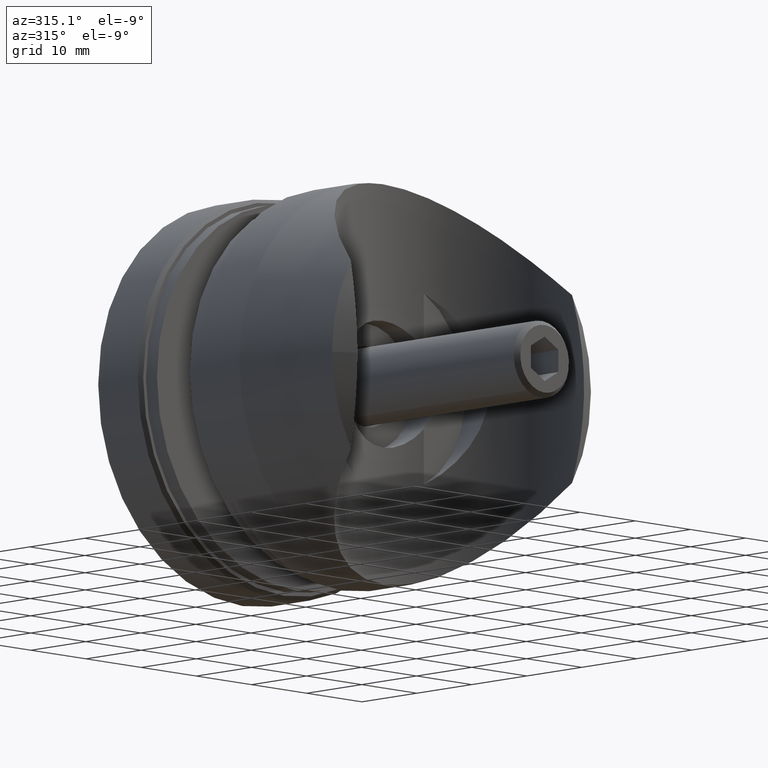
[diagram: clean part render]
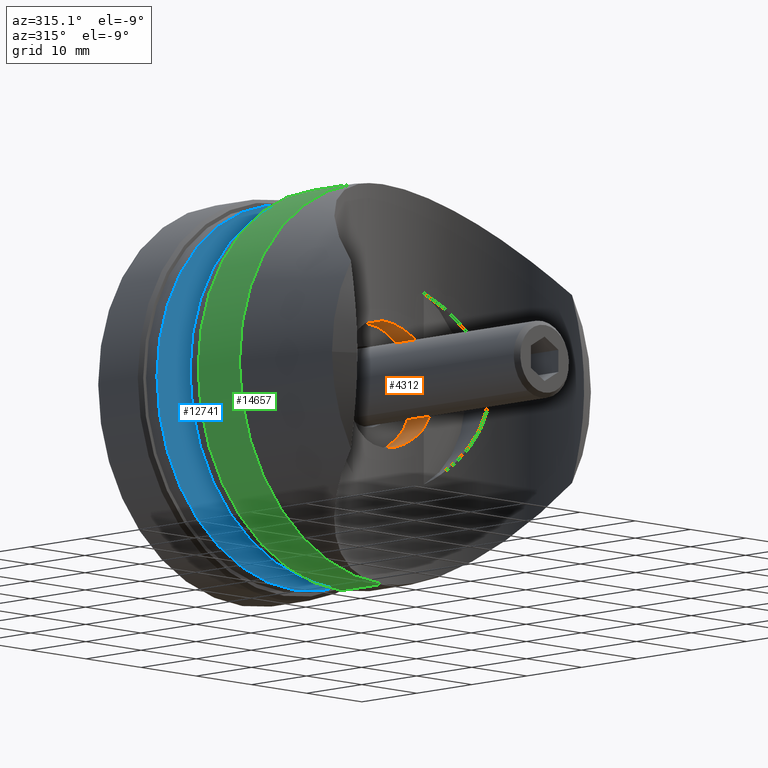
[diagram: same view with three faces highlighted in distinct colors, each labeled with its STEP entity id]
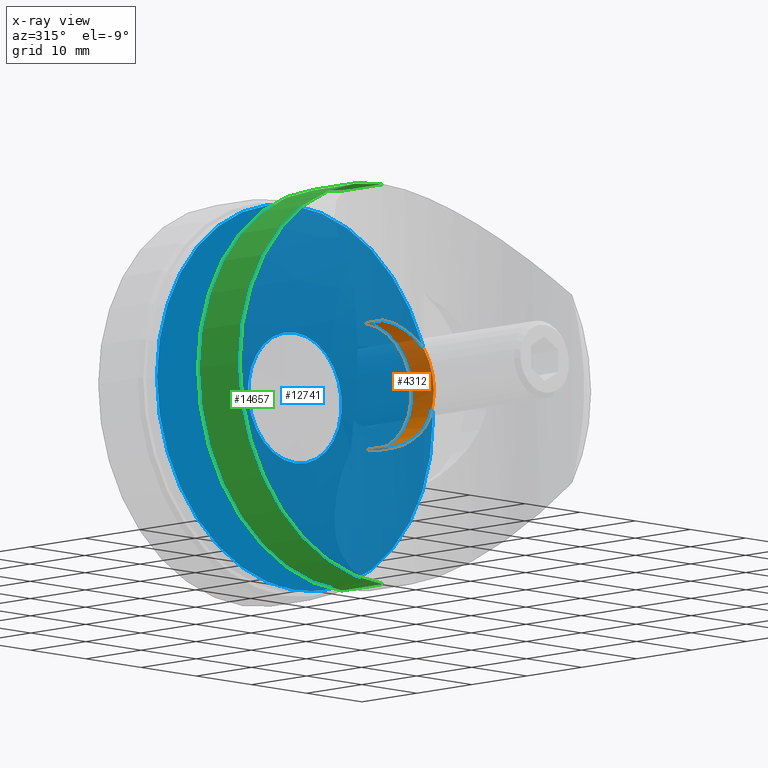
[diagram: x-ray of the same camera — body ghosted, the three highlighted faces saturated]
A machine part, auxiliary view with three faces highlighted in distinct colors.
The next image is the same camera in x-ray (body ghosted, the three faces saturated) — at least one of them is partly hidden behind the body in this view.
Their STEP definitions:

[orange] entity #4312 — the highlighted cylindrical surface (partial cylindrical patch) has radius 8.25 mm, axis along (-0, -1, -0).
#426 = CARTESIAN_POINT ( 'NONE',  ( 6.434283176858145659, -4.999999999999997335, -5.163574343417575818 ) ) ;
#431 = CARTESIAN_POINT ( 'NONE',  ( 3.862137608869713912, -4.352876510457712733, 7.296615947533547697 ) ) ;
#533 = CARTESIAN_POINT ( 'NONE',  ( 1.235946909118811110, -4.033801596995484573, 8.162811506258735861 ) ) ;
#590 = CARTESIAN_POINT ( 'NONE',  ( 3.032843461462812584, -4.210561719508802092, 7.696830862169781184 ) ) ;
#823 = CARTESIAN_POINT ( 'NONE',  ( 0.000000000000000000, 27.33452377915606490, 0.000000000000000000 ) ) ;
#1068 = CARTESIAN_POINT ( 'NONE',  ( 0.000000000000000000, -1.000000000000000888, -8.250000000000000000 ) ) ;
#1110 = DIRECTION ( 'NONE',  ( -0.000000000000000000, -1.000000000000000000, -0.000000000000000000 ) ) ;
#1178 = B_SPLINE_CURVE_WITH_KNOTS ( 'NONE', 3,
 ( #8316, #13671, #14888, #12357, #9730, #14996, #11083, #7092, #431, #590, #8516, #7144, #533, #4435, #16319, #8466 ),
 .UNSPECIFIED., .F., .F.,
 ( 4, 2, 2, 2, 2, 2, 2, 4 ),
 ( 0.01862727477083785804, 0.01955552794347118623, 0.02048378111610451441, 0.02141203428873784606, 0.02234028746137117424, 0.02419679380663783061, 0.02512504697927115879, 0.02605330015190448698 ),
 .UNSPECIFIED. ) ;
#1702 = CARTESIAN_POINT ( 'NONE',  ( 3.867604555593285642, -4.353899705762120931, -7.293691138049652523 ) ) ;
#2099 = ORIENTED_EDGE ( 'NONE', *, *, #4969, .T. ) ;
#2435 = FACE_OUTER_BOUND ( 'NONE', #9738, .T. ) ;
#3379 = AXIS2_PLACEMENT_3D ( 'NONE', #3911, #1110, #7621 ) ;
#3468 = DIRECTION ( 'NONE',  ( 0.000000000000000000, 0.000000000000000000, 1.000000000000000000 ) ) ;
#3656 = LINE ( 'NONE', #8194, #11479 ) ;
#3850 = CIRCLE ( 'NONE', #3379, 8.250000000000000000 ) ;
#3911 = CARTESIAN_POINT ( 'NONE',  ( 0.000000000000000000, -4.999999999999997335, 0.000000000000000000 ) ) ;
#4116 = DIRECTION ( 'NONE',  ( -0.000000000000000000, -1.000000000000000000, -0.000000000000000000 ) ) ;
#4157 = CARTESIAN_POINT ( 'NONE',  ( 0.6280935444801919454, -4.000000000000006217, -8.250000000000001776 ) ) ;
#4175 = ORIENTED_EDGE ( 'NONE', *, *, #11710, .T. ) ;
#4312 = ADVANCED_FACE ( 'NONE', ( #2435 ), #7853, .F. ) ;
#4435 = CARTESIAN_POINT ( 'NONE',  ( 0.6184134506011778054, -4.006767957632635380, 8.232655783705878250 ) ) ;
#4791 = VERTEX_POINT ( 'NONE', #14221 ) ;
#4969 = EDGE_CURVE ( 'NONE', #10486, #5232, #3656, .T. ) ;
#4970 = ORIENTED_EDGE ( 'NONE', *, *, #14751, .T. ) ;
#5232 = VERTEX_POINT ( 'NONE', #9906 ) ;
#5299 = ORIENTED_EDGE ( 'NONE', *, *, #6974, .F. ) ;
#5466 = DIRECTION ( 'NONE',  ( 0.000000000000000000, 0.000000000000000000, -1.000000000000000000 ) ) ;
#5576 = CARTESIAN_POINT ( 'NONE',  ( 0.000000000000000000, -4.000000000000003553, -8.250000000000000000 ) ) ;
#5681 = CARTESIAN_POINT ( 'NONE',  ( 3.316185083126090394, -4.259102718118249697, -7.560371148968942023 ) ) ;
#5814 = DIRECTION ( 'NONE',  ( -0.000000000000000000, -1.000000000000000000, -0.000000000000000000 ) ) ;
#5825 = CARTESIAN_POINT ( 'NONE',  ( 4.652563320265802105, -4.515134109226534243, -6.819802206133839917 ) ) ;
#5828 = AXIS2_PLACEMENT_3D ( 'NONE', #16574, #15373, #3468 ) ;
#6718 = CARTESIAN_POINT ( 'NONE',  ( 2.146371736535380492, -4.106767152679979382, -7.971891583254208768 ) ) ;
#6974 = EDGE_CURVE ( 'NONE', #10486, #14253, #14575, .T. ) ;
#7092 = CARTESIAN_POINT ( 'NONE',  ( 4.133808492902539378, -4.405233460762915776, 7.146227505076533149 ) ) ;
#7144 = CARTESIAN_POINT ( 'NONE',  ( 1.546479031526883041, -4.054297953358156903, 8.109707672283098745 ) ) ;
#7621 = DIRECTION ( 'NONE',  ( -8.881784197001252323E-16, 0.000000000000000000, 1.000000000000000000 ) ) ;
#7853 = CYLINDRICAL_SURFACE ( 'NONE', #15711, 8.250000000000000000 ) ;
#8194 = CARTESIAN_POINT ( 'NONE',  ( 0.000000000000000000, 27.33452377915606490, -8.250000000000000000 ) ) ;
#8316 = CARTESIAN_POINT ( 'NONE',  ( 6.434283176858147435, -4.999999999999998224, 5.163574343417575818 ) ) ;
#8425 = CARTESIAN_POINT ( 'NONE',  ( 6.434283176858147435, -4.999999999999998224, 5.163574343417575818 ) ) ;
#8466 = CARTESIAN_POINT ( 'NONE',  ( 1.010475573626817803E-15, -4.000000000000001776, 8.250000000000000000 ) ) ;
#8516 = CARTESIAN_POINT ( 'NONE',  ( 2.454493960245366591, -4.133801739271009801, 7.900872299846232849 ) ) ;
#8863 = EDGE_CURVE ( 'NONE', #10451, #16675, #3850, .T. ) ;
#9724 = CARTESIAN_POINT ( 'NONE',  ( 4.134819212933450672, -4.405450414959147132, -7.145580288278003067 ) ) ;
#9730 = CARTESIAN_POINT ( 'NONE',  ( 5.377986203907572538, -4.692019016493973460, 6.263553480414314478 ) ) ;
#9738 = EDGE_LOOP ( 'NONE', ( #11273, #5299, #2099, #4175, #16736, #4970 ) ) ;
#9906 = CARTESIAN_POINT ( 'NONE',  ( 0.000000000000000000, -4.000000000000003553, -8.250000000000000000 ) ) ;
#10451 = VERTEX_POINT ( 'NONE', #12815 ) ;
#10486 = VERTEX_POINT ( 'NONE', #1068 ) ;
#10605 = CARTESIAN_POINT ( 'NONE',  ( 1.242921929274835247, -4.027832434812904872, -8.179212264268288735 ) ) ;
#11027 = CARTESIAN_POINT ( 'NONE',  ( 4.904465153035978631, -4.573627435926878704, -6.640985132695252702 ) ) ;
#11083 = CARTESIAN_POINT ( 'NONE',  ( 4.654006748762734347, -4.515442734739560926, 6.818882708536375681 ) ) ;
#11273 = ORIENTED_EDGE ( 'NONE', *, *, #15289, .F. ) ;
#11479 = VECTOR ( 'NONE', #16242, 1000.000000000000000 ) ;
#11665 = B_SPLINE_CURVE_WITH_KNOTS ( 'NONE', 3,
 ( #5576, #4157, #10605, #6718, #14668, #12193, #5681, #1702, #9724, #5825, #11027, #16261, #14831, #426 ),
 .UNSPECIFIED., .F., .F.,
 ( 4, 2, 2, 2, 2, 2, 4 ),
 ( 2.088545368234104149E-19, 0.001856260107974679963, 0.002784390161962020920, 0.003712520215949362962, 0.004640650269936704569, 0.005568780323924046177, 0.007425040431898725923 ),
 .UNSPECIFIED. ) ;
#11710 = EDGE_CURVE ( 'NONE', #5232, #10451, #11665, .T. ) ;
#12193 = CARTESIAN_POINT ( 'NONE',  ( 3.031983178972470938, -4.215851342580163141, -7.678944098801812501 ) ) ;
#12357 = CARTESIAN_POINT ( 'NONE',  ( 5.604718145097468351, -4.753055758165267264, 6.061551856499701074 ) ) ;
#12815 = CARTESIAN_POINT ( 'NONE',  ( 6.434283176858145659, -4.999999999999997335, -5.163574343417575818 ) ) ;
#13654 = CARTESIAN_POINT ( 'NONE',  ( 1.010333609296566550E-15, 27.33452377915606490, 8.250000000000000000 ) ) ;
#13671 = CARTESIAN_POINT ( 'NONE',  ( 6.242515077160820880, -4.938916323874229519, 5.402534833899040656 ) ) ;
#13743 = CARTESIAN_POINT ( 'NONE',  ( 1.010333609296566550E-15, -1.000000000000000888, 8.250000000000000000 ) ) ;
#14221 = CARTESIAN_POINT ( 'NONE',  ( 1.010475573626817803E-15, -4.000000000000001776, 8.250000000000000000 ) ) ;
#14253 = VERTEX_POINT ( 'NONE', #13743 ) ;
#14575 = CIRCLE ( 'NONE', #5828, 8.250000000000000000 ) ;
#14668 = CARTESIAN_POINT ( 'NONE',  ( 2.445611575441109409, -4.139458675135266219, -7.885308395501325229 ) ) ;
#14751 = EDGE_CURVE ( 'NONE', #16675, #4791, #1178, .T. ) ;
#14831 = CARTESIAN_POINT ( 'NONE',  ( 6.052774327607107985, -4.878478417299079162, -5.638969061746310629 ) ) ;
#14888 = CARTESIAN_POINT ( 'NONE',  ( 6.036438206118567074, -4.876323952139086870, 5.631757290467320765 ) ) ;
#14996 = CARTESIAN_POINT ( 'NONE',  ( 4.902629283654047931, -4.573215332090105001, 6.642218298015222011 ) ) ;
#15200 = LINE ( 'NONE', #13654, #15621 ) ;
#15289 = EDGE_CURVE ( 'NONE', #14253, #4791, #15200, .T. ) ;
#15373 = DIRECTION ( 'NONE',  ( -0.000000000000000000, -1.000000000000000000, -0.000000000000000000 ) ) ;
#15621 = VECTOR ( 'NONE', #5814, 1000.000000000000000 ) ;
#15711 = AXIS2_PLACEMENT_3D ( 'NONE', #823, #4116, #5466 ) ;
#16242 = DIRECTION ( 'NONE',  ( -0.000000000000000000, -1.000000000000000000, -0.000000000000000000 ) ) ;
#16261 = CARTESIAN_POINT ( 'NONE',  ( 5.623406091705739129, -4.753450210733898729, -6.067590280157445726 ) ) ;
#16319 = CARTESIAN_POINT ( 'NONE',  ( 0.3093522894213632246, -4.000000000000004441, 8.250000000000001776 ) ) ;
#16574 = CARTESIAN_POINT ( 'NONE',  ( 0.000000000000000000, -1.000000000000000888, 0.000000000000000000 ) ) ;
#16675 = VERTEX_POINT ( 'NONE', #8425 ) ;
#16736 = ORIENTED_EDGE ( 'NONE', *, *, #8863, .T. ) ;

[blue] entity #12741 — the highlighted planar face has unit normal (0, 1, 0).
#130 = DIRECTION ( 'NONE',  ( -0.000000000000000000, 1.000000000000000000, -0.000000000000000000 ) ) ;
#408 = AXIS2_PLACEMENT_3D ( 'NONE', #7218, #3166, #11096 ) ;
#609 = CARTESIAN_POINT ( 'NONE',  ( 3.607365638562237181E-15, -2.000000000000000000, -25.00000000000000000 ) ) ;
#902 = CARTESIAN_POINT ( 'NONE',  ( 8.500000000000000000, -2.000000000000000000, 0.000000000000000000 ) ) ;
#1133 = CARTESIAN_POINT ( 'NONE',  ( 5.457486406938542366E-16, -2.000000000000000000, 0.000000000000000000 ) ) ;
#1703 = DIRECTION ( 'NONE',  ( 0.000000000000000000, 0.000000000000000000, 1.000000000000000000 ) ) ;
#1841 = FACE_OUTER_BOUND ( 'NONE', #3370, .T. ) ;
#1871 = EDGE_LOOP ( 'NONE', ( #12751, #12922 ) ) ;
#2418 = DIRECTION ( 'NONE',  ( 0.000000000000000000, -0.000000000000000000, -1.000000000000000000 ) ) ;
#3166 = DIRECTION ( 'NONE',  ( -0.000000000000000000, 1.000000000000000000, -0.000000000000000000 ) ) ;
#3370 = EDGE_LOOP ( 'NONE', ( #15734, #5000 ) ) ;
#3984 = EDGE_CURVE ( 'NONE', #7970, #9087, #12491, .T. ) ;
#4709 = EDGE_CURVE ( 'NONE', #13041, #14035, #7628, .T. ) ;
#4984 = CIRCLE ( 'NONE', #408, 25.00000000000000000 ) ;
#5000 = ORIENTED_EDGE ( 'NONE', *, *, #4709, .T. ) ;
#5656 = EDGE_CURVE ( 'NONE', #9087, #7970, #10900, .T. ) ;
#6207 = CARTESIAN_POINT ( 'NONE',  ( 1.586698419969104475E-15, -2.000000000000000000, -8.500000000000000000 ) ) ;
#6606 = AXIS2_PLACEMENT_3D ( 'NONE', #8301, #130, #8599 ) ;
#7218 = CARTESIAN_POINT ( 'NONE',  ( 5.457486406938542366E-16, -2.000000000000000000, 0.000000000000000000 ) ) ;
#7522 = AXIS2_PLACEMENT_3D ( 'NONE', #902, #7598, #2418 ) ;
#7598 = DIRECTION ( 'NONE',  ( 0.000000000000000000, -1.000000000000000000, 0.000000000000000000 ) ) ;
#7628 = CIRCLE ( 'NONE', #6606, 25.00000000000000000 ) ;
#7657 = PLANE ( 'NONE',  #7522 ) ;
#7970 = VERTEX_POINT ( 'NONE', #17025 ) ;
#8301 = CARTESIAN_POINT ( 'NONE',  ( 5.457486406938542366E-16, -2.000000000000000000, 0.000000000000000000 ) ) ;
#8599 = DIRECTION ( 'NONE',  ( 0.000000000000000000, 0.000000000000000000, 1.000000000000000000 ) ) ;
#9087 = VERTEX_POINT ( 'NONE', #6207 ) ;
#9675 = AXIS2_PLACEMENT_3D ( 'NONE', #12031, #12145, #1703 ) ;
#10371 = DIRECTION ( 'NONE',  ( -0.000000000000000000, 1.000000000000000000, -0.000000000000000000 ) ) ;
#10763 = AXIS2_PLACEMENT_3D ( 'NONE', #1133, #10371, #11549 ) ;
#10900 = CIRCLE ( 'NONE', #9675, 8.500000000000000000 ) ;
#11096 = DIRECTION ( 'NONE',  ( 0.000000000000000000, 0.000000000000000000, 1.000000000000000000 ) ) ;
#11549 = DIRECTION ( 'NONE',  ( 0.000000000000000000, 0.000000000000000000, 1.000000000000000000 ) ) ;
#12031 = CARTESIAN_POINT ( 'NONE',  ( 5.457486406938542366E-16, -2.000000000000000000, 0.000000000000000000 ) ) ;
#12145 = DIRECTION ( 'NONE',  ( -0.000000000000000000, 1.000000000000000000, -0.000000000000000000 ) ) ;
#12491 = CIRCLE ( 'NONE', #10763, 8.500000000000000000 ) ;
#12741 = ADVANCED_FACE ( 'NONE', ( #13780, #1841 ), #7657, .F. ) ;
#12751 = ORIENTED_EDGE ( 'NONE', *, *, #3984, .F. ) ;
#12922 = ORIENTED_EDGE ( 'NONE', *, *, #5656, .F. ) ;
#13028 = EDGE_CURVE ( 'NONE', #14035, #13041, #4984, .T. ) ;
#13041 = VERTEX_POINT ( 'NONE', #609 ) ;
#13780 = FACE_BOUND ( 'NONE', #1871, .T. ) ;
#14035 = VERTEX_POINT ( 'NONE', #14504 ) ;
#14504 = CARTESIAN_POINT ( 'NONE',  ( 5.457486406938542366E-16, -2.000000000000000000, 25.00000000000000000 ) ) ;
#15734 = ORIENTED_EDGE ( 'NONE', *, *, #13028, .T. ) ;
#17025 = CARTESIAN_POINT ( 'NONE',  ( 5.457486406938542366E-16, -2.000000000000000000, 8.500000000000000000 ) ) ;

[green] entity #14657 — the highlighted cylindrical surface (partial cylindrical patch) has radius 26 mm, axis along (-0, -1, -0).
#80 = VERTEX_POINT ( 'NONE', #6141 ) ;
#1619 = CIRCLE ( 'NONE', #9461, 26.00000000000000355 ) ;
#2615 = CARTESIAN_POINT ( 'NONE',  ( 0.000000000000000000, -4.000000000000000000, 0.000000000000000000 ) ) ;
#2684 = AXIS2_PLACEMENT_3D ( 'NONE', #5783, #5890, #3206 ) ;
#2730 = VERTEX_POINT ( 'NONE', #5405 ) ;
#2897 = CARTESIAN_POINT ( 'NONE',  ( 0.000000000000000000, 3.499999999999996003, -26.00000000000000000 ) ) ;
#3206 = DIRECTION ( 'NONE',  ( 0.000000000000000000, 0.000000000000000000, -1.000000000000000000 ) ) ;
#3450 = AXIS2_PLACEMENT_3D ( 'NONE', #15384, #15440, #16646 ) ;
#3483 = FACE_OUTER_BOUND ( 'NONE', #13668, .T. ) ;
#3523 = EDGE_CURVE ( 'NONE', #12943, #2730, #16348, .T. ) ;
#5313 = DIRECTION ( 'NONE',  ( 0.000000000000000000, 0.000000000000000000, 1.000000000000000000 ) ) ;
#5405 = CARTESIAN_POINT ( 'NONE',  ( 0.000000000000000000, -4.000000000000000000, -26.00000000000000355 ) ) ;
#5783 = CARTESIAN_POINT ( 'NONE',  ( 0.000000000000000000, -4.000000000000000000, 0.000000000000000000 ) ) ;
#5890 = DIRECTION ( 'NONE',  ( -0.000000000000000000, -1.000000000000000000, -0.000000000000000000 ) ) ;
#5977 = EDGE_CURVE ( 'NONE', #2730, #15889, #1619, .T. ) ;
#6141 = CARTESIAN_POINT ( 'NONE',  ( 3.184081677783118191E-15, 3.499999999999996003, 26.00000000000000000 ) ) ;
#6237 = DIRECTION ( 'NONE',  ( -0.000000000000000000, -1.000000000000000000, -0.000000000000000000 ) ) ;
#6532 = CARTESIAN_POINT ( 'NONE',  ( -1.334442812236734961E-15, -4.000000000000003553, 26.00000000000000000 ) ) ;
#7656 = CYLINDRICAL_SURFACE ( 'NONE', #2684, 26.00000000000000000 ) ;
#8661 = DIRECTION ( 'NONE',  ( -0.000000000000000000, -1.000000000000000000, -0.000000000000000000 ) ) ;
#9056 = ORIENTED_EDGE ( 'NONE', *, *, #16231, .T. ) ;
#9461 = AXIS2_PLACEMENT_3D ( 'NONE', #2615, #13140, #5313 ) ;
#10199 = CARTESIAN_POINT ( 'NONE',  ( 0.000000000000000000, -4.000000000000000000, -26.00000000000000000 ) ) ;
#11197 = VECTOR ( 'NONE', #6237, 1000.000000000000000 ) ;
#11702 = ORIENTED_EDGE ( 'NONE', *, *, #5977, .T. ) ;
#11738 = LINE ( 'NONE', #16678, #14407 ) ;
#12943 = VERTEX_POINT ( 'NONE', #2897 ) ;
#13140 = DIRECTION ( 'NONE',  ( -0.000000000000000000, 1.000000000000000000, -0.000000000000000000 ) ) ;
#13668 = EDGE_LOOP ( 'NONE', ( #16521, #9056, #16727, #11702 ) ) ;
#13892 = EDGE_CURVE ( 'NONE', #80, #15889, #11738, .T. ) ;
#14371 = CIRCLE ( 'NONE', #3450, 26.00000000000000000 ) ;
#14407 = VECTOR ( 'NONE', #8661, 1000.000000000000000 ) ;
#14657 = ADVANCED_FACE ( 'NONE', ( #3483 ), #7656, .T. ) ;
#15384 = CARTESIAN_POINT ( 'NONE',  ( 0.000000000000000000, 3.499999999999996003, 0.000000000000000000 ) ) ;
#15440 = DIRECTION ( 'NONE',  ( -0.000000000000000000, -1.000000000000000000, -0.000000000000000000 ) ) ;
#15889 = VERTEX_POINT ( 'NONE', #6532 ) ;
#16231 = EDGE_CURVE ( 'NONE', #80, #12943, #14371, .T. ) ;
#16348 = LINE ( 'NONE', #10199, #11197 ) ;
#16521 = ORIENTED_EDGE ( 'NONE', *, *, #13892, .F. ) ;
#16646 = DIRECTION ( 'NONE',  ( 0.000000000000000000, 0.000000000000000000, 1.000000000000000000 ) ) ;
#16678 = CARTESIAN_POINT ( 'NONE',  ( 3.184081677783118191E-15, -4.000000000000000000, 26.00000000000000000 ) ) ;
#16727 = ORIENTED_EDGE ( 'NONE', *, *, #3523, .T. ) ;